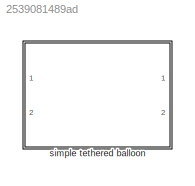
MODEL slx_2539081489ad
KIND library
CONFIG AbsTol = auto
CONFIG EnableMultiTasking = off
CONFIG FixedStep = auto
CONFIG MaxStep = auto
CONFIG MinStep = auto
CONFIG RelTol = 1e-3
CONFIG SampleTimeConstraint = Unconstrained
CONFIG Solver = VariableStepAuto
CONFIG SolverName = VariableStepAuto
CONFIG StartTime = 0.0
CONFIG StopTime = 10.0
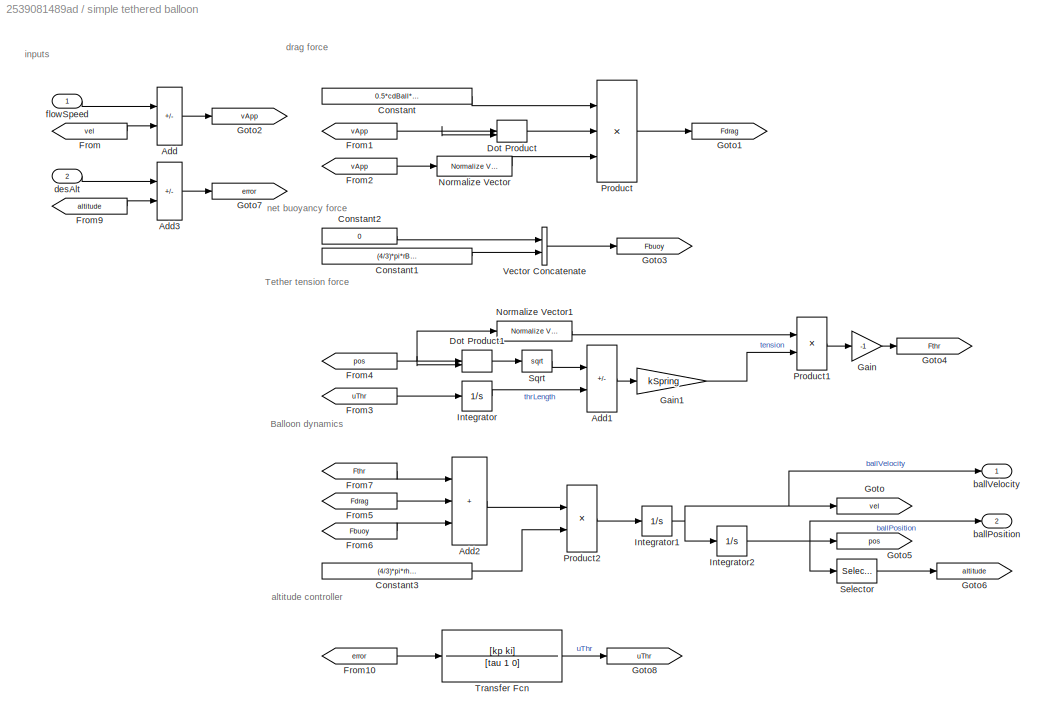
BLOCK [SubSystem] simple tethered balloon
  Ports = [2, 2]
  RequestExecContextInheritance = off
BLOCK [Sum] simple tethered balloon/Add
  IconShape = rectangular
  Inputs = +-
  Ports = [2, 1]
BLOCK [Sum] simple tethered balloon/Add1
  IconShape = rectangular
  Inputs = +-
  Ports = [2, 1]
BLOCK [Sum] simple tethered balloon/Add2
  IconShape = rectangular
  Inputs = +++
  Ports = [3, 1]
BLOCK [Sum] simple tethered balloon/Add3
  IconShape = rectangular
  Inputs = +-
  Ports = [2, 1]
BLOCK [Constant] simple tethered balloon/Constant
  Value = 0.5*cdBall*rhoEnv*pi*rBall^2
BLOCK [Constant] simple tethered balloon/Constant1
  Value = (4/3)*pi*rBall^3*(rhoEnv-rhoBall)
BLOCK [Constant] simple tethered balloon/Constant2
  Value = 0
BLOCK [Constant] simple tethered balloon/Constant3
  Value = (4/3)*pi*rhoBall*rBall^3
BLOCK [DotProduct] simple tethered balloon/Dot Product
  OutDataTypeStr = Inherit: Inherit via internal rule
BLOCK [DotProduct] simple tethered balloon/Dot Product1
  OutDataTypeStr = Inherit: Inherit via internal rule
BLOCK [From] simple tethered balloon/From
  GotoTag = vel
BLOCK [From] simple tethered balloon/From1
  GotoTag = vApp
BLOCK [From] simple tethered balloon/From10
  GotoTag = error
BLOCK [From] simple tethered balloon/From2
  GotoTag = vApp
BLOCK [From] simple tethered balloon/From3
  GotoTag = uThr
BLOCK [From] simple tethered balloon/From4
  GotoTag = pos
BLOCK [From] simple tethered balloon/From5
  GotoTag = Fdrag
BLOCK [From] simple tethered balloon/From6
  GotoTag = Fbuoy
BLOCK [From] simple tethered balloon/From7
  GotoTag = Fthr
BLOCK [From] simple tethered balloon/From9
  GotoTag = altitude
BLOCK [Gain] simple tethered balloon/Gain
  Gain = -1
BLOCK [Gain] simple tethered balloon/Gain1
  Gain = kSpring
BLOCK [Goto] simple tethered balloon/Goto
  GotoTag = vel
BLOCK [Goto] simple tethered balloon/Goto1
  GotoTag = Fdrag
BLOCK [Goto] simple tethered balloon/Goto2
  GotoTag = vApp
BLOCK [Goto] simple tethered balloon/Goto3
  GotoTag = Fbuoy
BLOCK [Goto] simple tethered balloon/Goto4
  GotoTag = Fthr
BLOCK [Goto] simple tethered balloon/Goto5
  GotoTag = pos
BLOCK [Goto] simple tethered balloon/Goto6
  GotoTag = altitude
BLOCK [Goto] simple tethered balloon/Goto7
  GotoTag = error
BLOCK [Goto] simple tethered balloon/Goto8
  GotoTag = uThr
BLOCK [Integrator] simple tethered balloon/Integrator
  InitialCondition = iniAlt
  Ports = [1, 1]
BLOCK [Integrator] simple tethered balloon/Integrator1
  InitialCondition = [0;0]
  Ports = [1, 1]
BLOCK [Integrator] simple tethered balloon/Integrator2
  InitialCondition = [0;iniAlt]
  Ports = [1, 1]
BLOCK [Reference] simple tethered balloon/Normalize Vector  REF=vrlib/Utilities/Normalize Vector
  Ports = [1, 1]
  SourceBlock = vrlib/Utilities/Normalize Vector
  SourceProductBaseCode = SL
  SourceType = Normalize Vector
BLOCK [Reference] simple tethered balloon/Normalize Vector1  REF=vrlib/Utilities/Normalize Vector
  Ports = [1, 1]
  SourceBlock = vrlib/Utilities/Normalize Vector
  SourceProductBaseCode = SL
  SourceType = Normalize Vector
BLOCK [Product] simple tethered balloon/Product
  Inputs = 3
  Ports = [3, 1]
BLOCK [Product] simple tethered balloon/Product1
  Ports = [2, 1]
BLOCK [Product] simple tethered balloon/Product2
  Inputs = */
  Ports = [2, 1]
BLOCK [Selector] simple tethered balloon/Selector
  IndexOptions = Index vector (dialog)
  Indices = 2
  InputPortWidth = 2
  OutputSizes = 1
  Ports = [1, 1]
BLOCK [Sqrt] simple tethered balloon/Sqrt
BLOCK [TransferFcn] simple tethered balloon/Transfer Fcn
  Denominator = [tau 1 0]
  Numerator = [kp ki]
BLOCK [Concatenate] simple tethered balloon/Vector Concatenate
  Ports = [2, 1]
BLOCK [Outport] simple tethered balloon/ballPosition
  Port = 2
BLOCK [Outport] simple tethered balloon/ballVelocity
BLOCK [Inport] simple tethered balloon/desAlt
  Port = 2
BLOCK [Inport] simple tethered balloon/flowSpeed
ANNOTATION simple tethered balloon: Balloon dynamics
ANNOTATION simple tethered balloon: Tether tension force
ANNOTATION simple tethered balloon: altitude controller
ANNOTATION simple tethered balloon: drag force
ANNOTATION simple tethered balloon: inputs
ANNOTATION simple tethered balloon: net buoyancy force
LINE simple tethered balloon/Add1:1 -> simple tethered balloon/Gain1:1
LINE simple tethered balloon/Add2:1 -> simple tethered balloon/Product2:1
LINE simple tethered balloon/Add3:1 -> simple tethered balloon/Goto7:1
LINE simple tethered balloon/Add:1 -> simple tethered balloon/Goto2:1
LINE simple tethered balloon/Constant1:1 -> simple tethered balloon/Vector Concatenate:2
LINE simple tethered balloon/Constant2:1 -> simple tethered balloon/Vector Concatenate:1
LINE simple tethered balloon/Constant3:1 -> simple tethered balloon/Product2:2
LINE simple tethered balloon/Constant:1 -> simple tethered balloon/Product:1
LINE simple tethered balloon/Dot Product1:1 -> simple tethered balloon/Sqrt:1
LINE simple tethered balloon/Dot Product:1 -> simple tethered balloon/Product:2
LINE simple tethered balloon/From10:1 -> simple tethered balloon/Transfer Fcn:1
NET simple tethered balloon/From1:1 -> simple tethered balloon/Dot Product:1, simple tethered balloon/Dot Product:2
LINE simple tethered balloon/From2:1 -> simple tethered balloon/Normalize Vector:1
LINE simple tethered balloon/From3:1 -> simple tethered balloon/Integrator:1
NET simple tethered balloon/From4:1 -> simple tethered balloon/Dot Product1:1, simple tethered balloon/Dot Product1:2, simple tethered balloon/Normalize Vector1:1
LINE simple tethered balloon/From5:1 -> simple tethered balloon/Add2:2
LINE simple tethered balloon/From6:1 -> simple tethered balloon/Add2:3
LINE simple tethered balloon/From7:1 -> simple tethered balloon/Add2:1
LINE simple tethered balloon/From9:1 -> simple tethered balloon/Add3:2
LINE simple tethered balloon/From:1 -> simple tethered balloon/Add:2
LINE simple tethered balloon/Gain1:1 -> simple tethered balloon/Product1:2
LINE simple tethered balloon/Gain:1 -> simple tethered balloon/Goto4:1
NET simple tethered balloon/Integrator1:1 -> simple tethered balloon/Goto:1, simple tethered balloon/Integrator2:1, simple tethered balloon/ballVelocity:1
NET simple tethered balloon/Integrator2:1 -> simple tethered balloon/Goto5:1, simple tethered balloon/Selector:1, simple tethered balloon/ballPosition:1
LINE simple tethered balloon/Integrator:1 -> simple tethered balloon/Add1:2
LINE simple tethered balloon/Normalize Vector1:1 -> simple tethered balloon/Product1:1
LINE simple tethered balloon/Normalize Vector:1 -> simple tethered balloon/Product:3
LINE simple tethered balloon/Product1:1 -> simple tethered balloon/Gain:1
LINE simple tethered balloon/Product2:1 -> simple tethered balloon/Integrator1:1
LINE simple tethered balloon/Product:1 -> simple tethered balloon/Goto1:1
LINE simple tethered balloon/Selector:1 -> simple tethered balloon/Goto6:1
LINE simple tethered balloon/Sqrt:1 -> simple tethered balloon/Add1:1
LINE simple tethered balloon/Transfer Fcn:1 -> simple tethered balloon/Goto8:1
LINE simple tethered balloon/Vector Concatenate:1 -> simple tethered balloon/Goto3:1
LINE simple tethered balloon/desAlt:1 -> simple tethered balloon/Add3:1
LINE simple tethered balloon/flowSpeed:1 -> simple tethered balloon/Add:1
note: NET lines group one-source signal fan-out (src -> all destinations, sorted); 1:1 wires keep LINE
